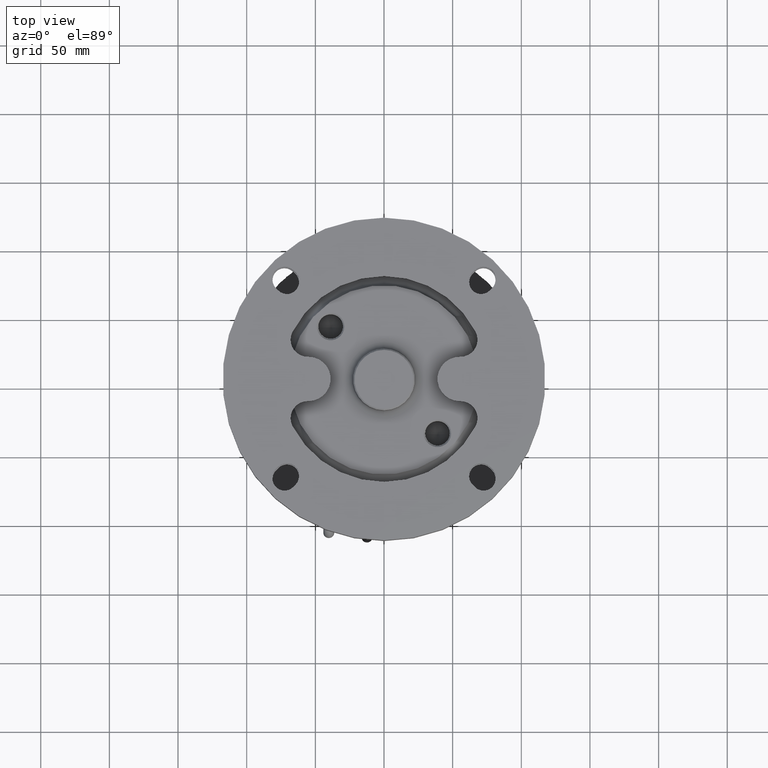
[diagram: clean part render]
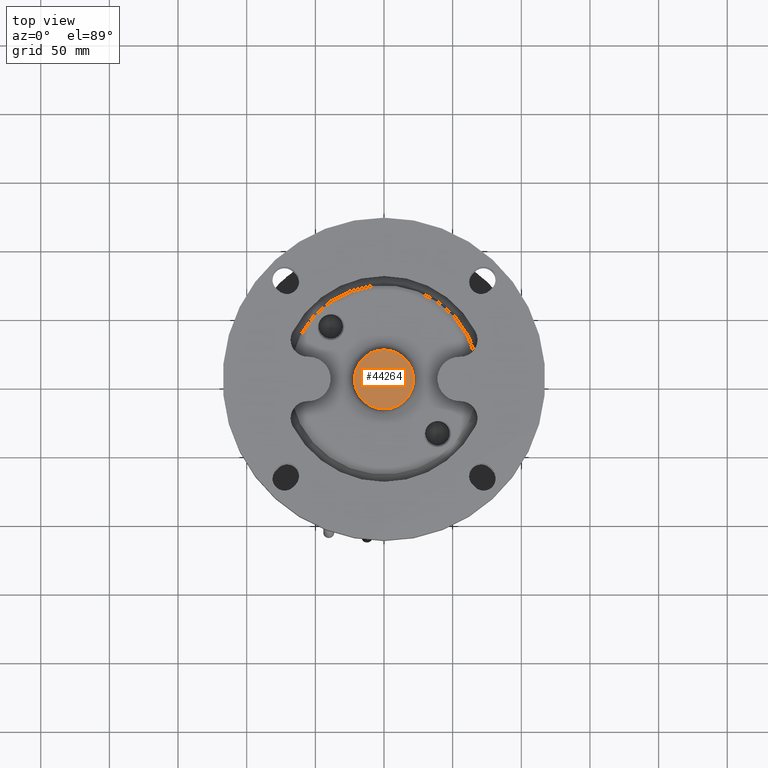
[diagram: same view with one face highlighted and labeled with its STEP entity id]
A machine part, top view. The second image highlights one B-rep face of the part: STEP entity #44264.
In plain terms, the highlighted planar face has unit normal (0, -0, 1).
Its self-contained STEP definition (entity closure, byte-faithful):
#2498 = CARTESIAN_POINT ( 'NONE',  ( 0.0000000000000000000, -3.061616997868384600E-015, -10.00000000000000000 ) ) ;
#2700 = VERTEX_POINT ( 'NONE', #37926 ) ;
#5751 = DIRECTION ( 'NONE',  ( 0.0000000000000000000, -1.224646799147353900E-016, 1.000000000000000000 ) ) ;
#9399 = FACE_OUTER_BOUND ( 'NONE', #29482, .T. ) ;
#16085 = CARTESIAN_POINT ( 'NONE',  ( 0.0000000000000000000, -3.061616997868384600E-015, -10.00000000000000000 ) ) ;
#16089 = CARTESIAN_POINT ( 'NONE',  ( 0.0000000000000000000, 22.50000000000000000, -10.00000000000000000 ) ) ;
#17208 = CARTESIAN_POINT ( 'NONE',  ( 0.0000000000000000000, 21.49999999999999600, -9.999999999999996400 ) ) ;
#19568 = DIRECTION ( 'NONE',  ( 0.0000000000000000000, -1.000000000000000000, -1.613696256722611200E-016 ) ) ;
#19840 = DIRECTION ( 'NONE',  ( 0.0000000000000000000, -1.000000000000000000, -1.613696256722611200E-016 ) ) ;
#19973 = ORIENTED_EDGE ( 'NONE', *, *, #29055, .T. ) ;
#21688 = AXIS2_PLACEMENT_3D ( 'NONE', #2498, #30144, #19568 ) ;
#22397 = DIRECTION ( 'NONE',  ( 0.0000000000000000000, -1.000000000000000000, -1.224646799147352000E-016 ) ) ;
#27983 = VERTEX_POINT ( 'NONE', #17208 ) ;
#28998 = PLANE ( 'NONE',  #36663 ) ;
#29055 = EDGE_CURVE ( 'NONE', #27983, #2700, #39031, .T. ) ;
#29330 = EDGE_CURVE ( 'NONE', #2700, #27983, #33107, .T. ) ;
#29482 = EDGE_LOOP ( 'NONE', ( #19973, #41379 ) ) ;
#30144 = DIRECTION ( 'NONE',  ( 0.0000000000000000000, -1.224646799147353900E-016, 1.000000000000000000 ) ) ;
#33107 = CIRCLE ( 'NONE', #21688, 21.50000000000000000 ) ;
#36663 = AXIS2_PLACEMENT_3D ( 'NONE', #16089, #43463, #22397 ) ;
#37926 = CARTESIAN_POINT ( 'NONE',  ( 2.694222958124176800E-015, -21.50000000000000000, -10.00000000000000400 ) ) ;
#39031 = CIRCLE ( 'NONE', #39158, 21.50000000000000000 ) ;
#39158 = AXIS2_PLACEMENT_3D ( 'NONE', #16085, #5751, #19840 ) ;
#41379 = ORIENTED_EDGE ( 'NONE', *, *, #29330, .T. ) ;
#43463 = DIRECTION ( 'NONE',  ( 0.0000000000000000000, -1.224646799147352000E-016, 1.000000000000000000 ) ) ;
#44264 = ADVANCED_FACE ( 'NONE', ( #9399 ), #28998, .T. ) ;